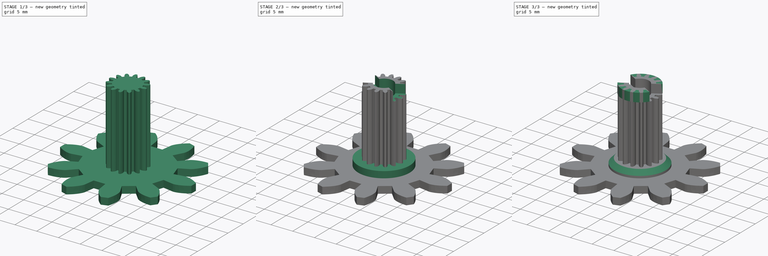
[diagram: build sequence overview — one tinted view per stage of 3, left to right]
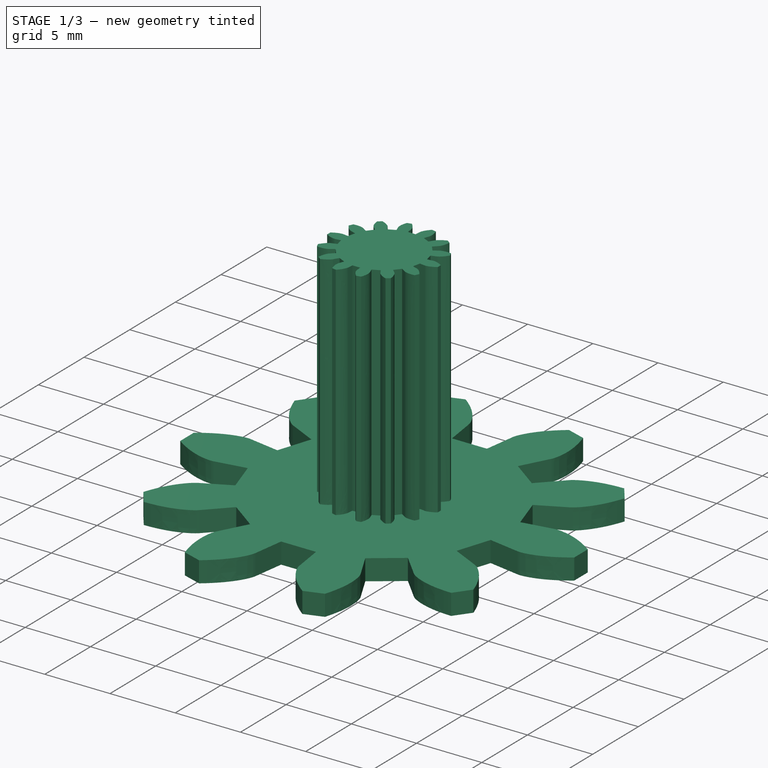
[diagram: stage 1 of 3 — iso view after this stage's code; geometry added in this stage tinted green]
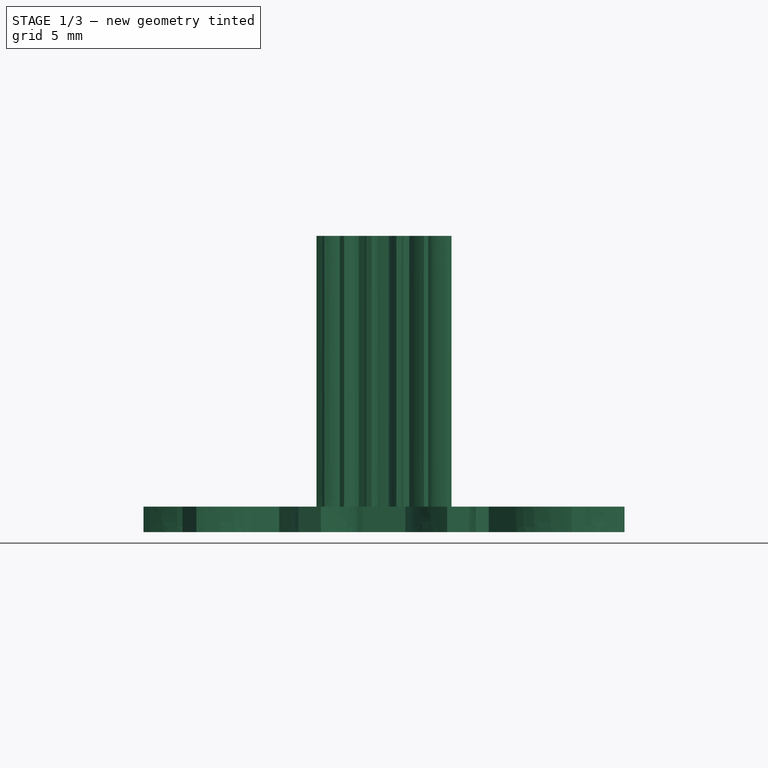
[diagram: stage 1 of 3 — front view after this stage's code; geometry added in this stage tinted green]
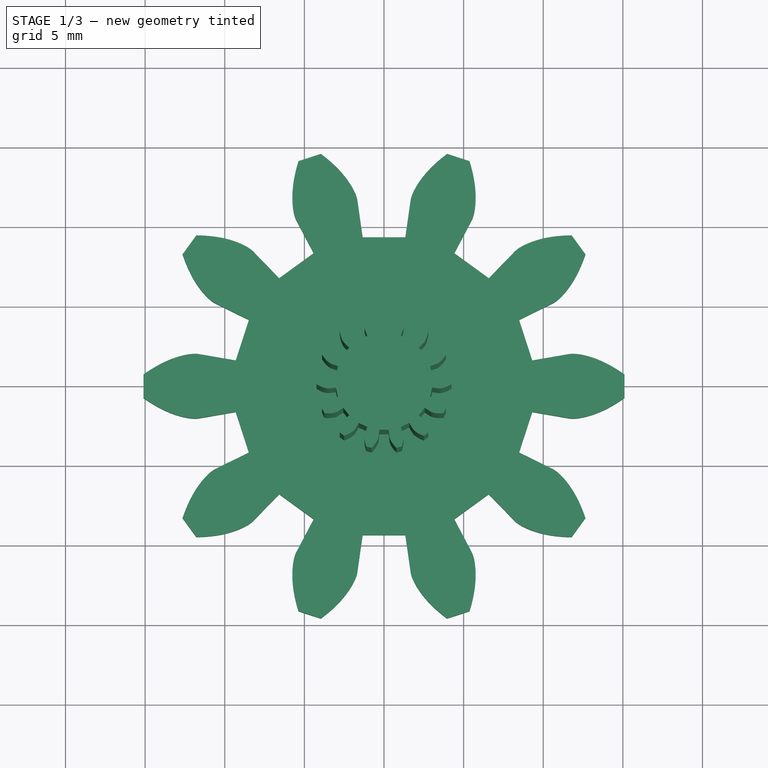
[diagram: stage 1 of 3 — top view after this stage's code; geometry added in this stage tinted green]
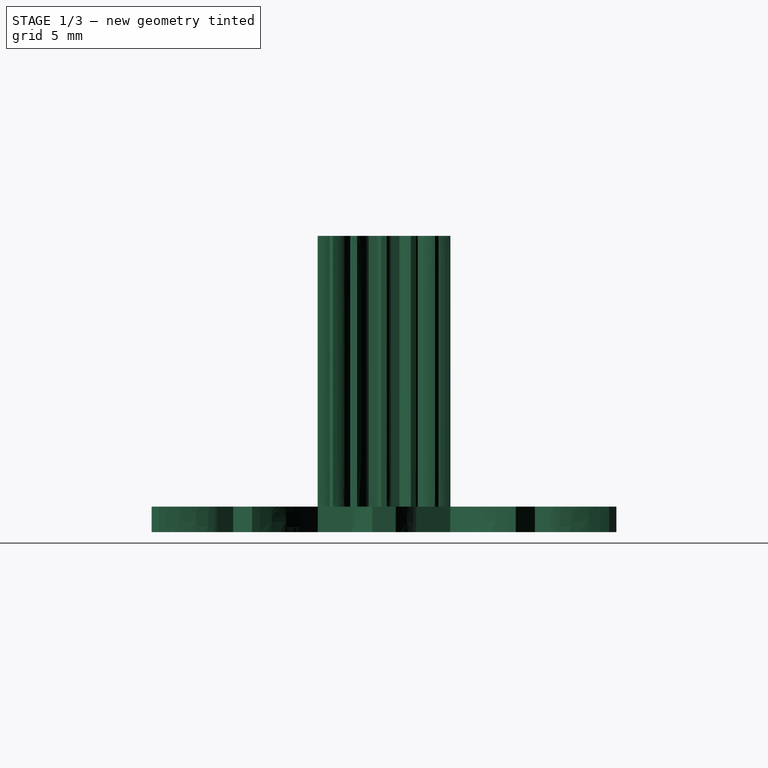
[diagram: stage 1 of 3 — right view after this stage's code; geometry added in this stage tinted green]
FCSTD DOCUMENT  (FreeCAD 0.20R29410 (Git))
Label: gear2
License: All rights reserved
LicenseURL: http://en.wikipedia.org/wiki/All_rights_reserved
objects: Sketcher::SketchObject×4, PartDesign::FeaturePython×2, PartDesign::Pad×2, PartDesign::Pocket×2, Spreadsheet::Sheet×1, PartDesign::Chamfer×1, PartDesign::Body×1, App::Part×1
note: 17 computed .brp shape members not serialized (recipe doc carries the construction recipe); baked Part::Feature solids carry a one-line shape summary decoded from their .brp

FEATURE [PartDesign::FeaturePython] InvoluteGear  # WARN: FeaturePython — macro-defined, semantics opaque (R4)
  AttacherType = Attacher::AttachEngine3D
  angular_backlash = 0
  backlash = 0
  beta = 0
  clearance = 0.25
  da = 30.24
  df = 18.9
  double_helix = false
  dw = 25.2
  head = 0
  head_fillet = 0
  height = 1.6
  module = 2.52
  numpoints = 6
  pressure_angle = 20
  properties_from_tool = false
  reversed_backlash = false
  root_fillet = 0
  shift = 0
  simple = false
  teeth = 10
  transverse_pitch = 7.91681
  undercut = false
  version = 0.0.4
  expr: angular_backlash = backlash / dw * 360° / pi
  expr: dw = teeth * module
FEATURE [PartDesign::FeaturePython] InvoluteGear001  # WARN: FeaturePython — macro-defined, semantics opaque (R4)
  AttacherType = Attacher::AttachEngine3D
  BaseFeature = -> InvoluteGear
  angular_backlash = 0
  backlash = 0
  beta = 0
  clearance = 0.25
  da = 8.48
  df = 6.095
  double_helix = false
  dw = 7.42
  head = 0
  head_fillet = 0
  height = 18.6
  module = 0.53
  numpoints = 6
  pressure_angle = 20
  properties_from_tool = false
  reversed_backlash = false
  root_fillet = 0
  shift = 0
  simple = false
  teeth = 14
  transverse_pitch = 1.66504
  undercut = false
  version = 0.0.4
  expr: angular_backlash = backlash / dw * 360° / pi
  expr: dw = teeth * module
  expr: height = <<P>>.g1_height + <<P>>.g2_height
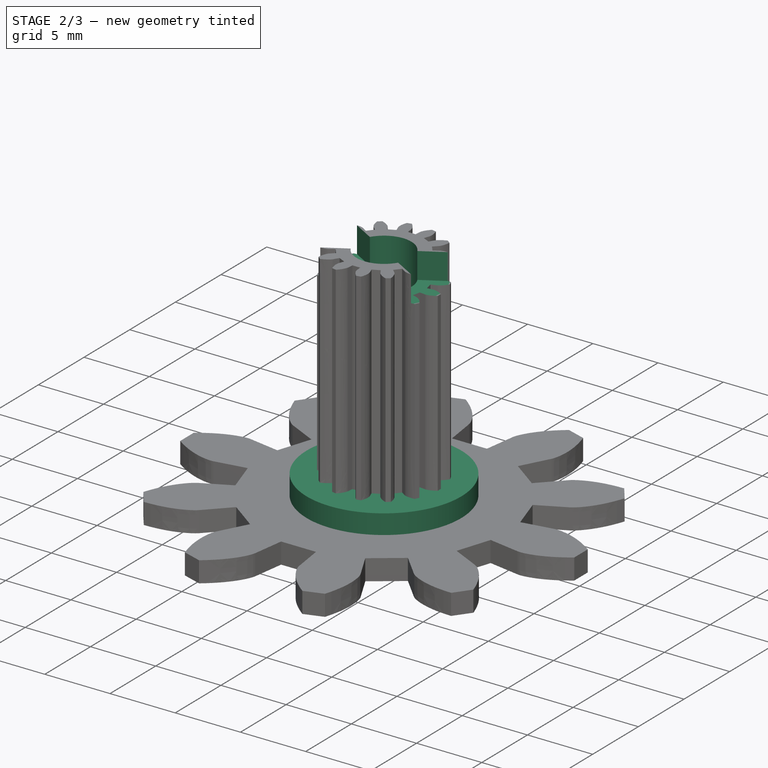
[diagram: stage 2 of 3 — iso view after this stage's code; geometry added in this stage tinted green]
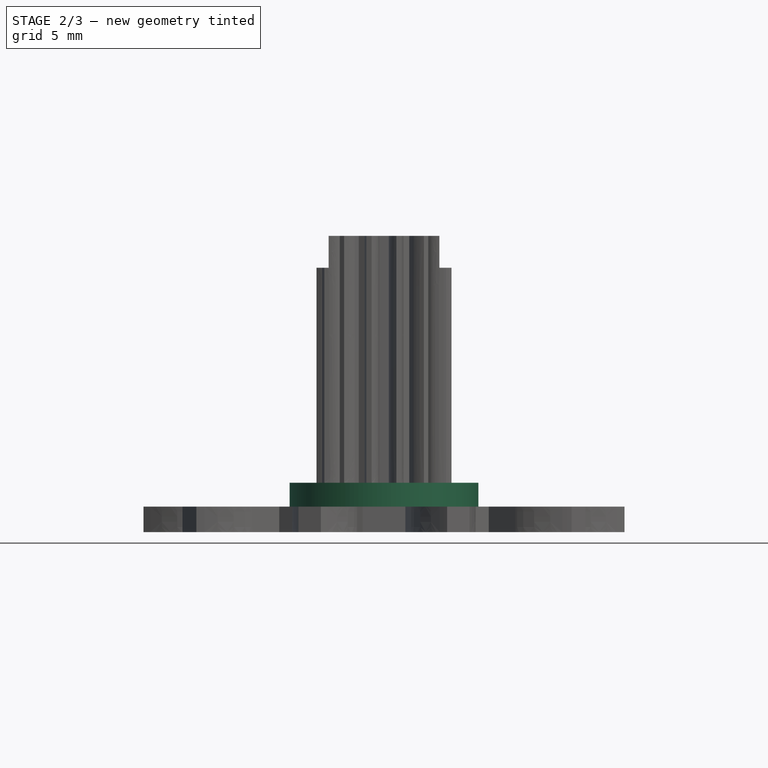
[diagram: stage 2 of 3 — front view after this stage's code; geometry added in this stage tinted green]
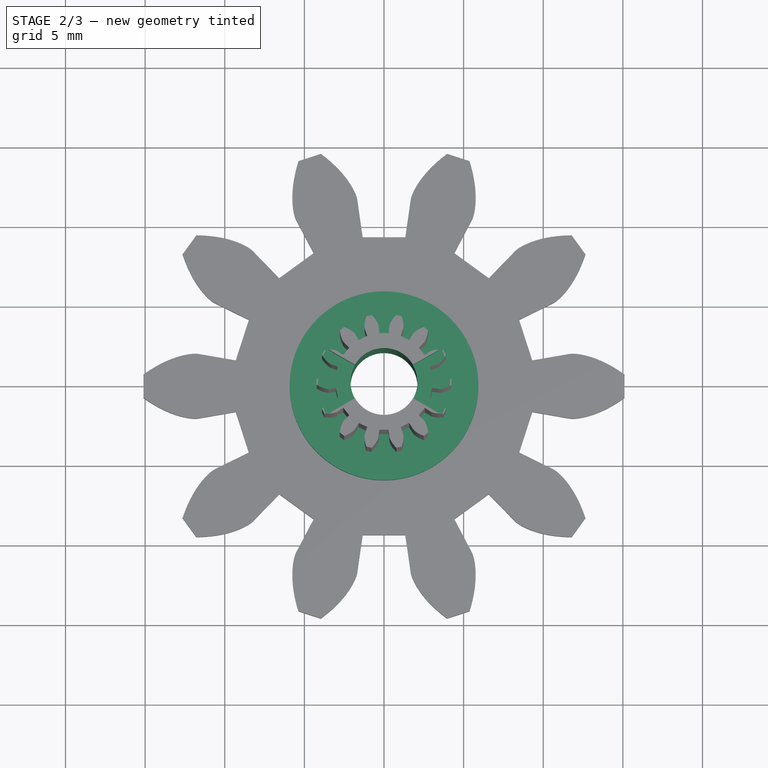
[diagram: stage 2 of 3 — top view after this stage's code; geometry added in this stage tinted green]
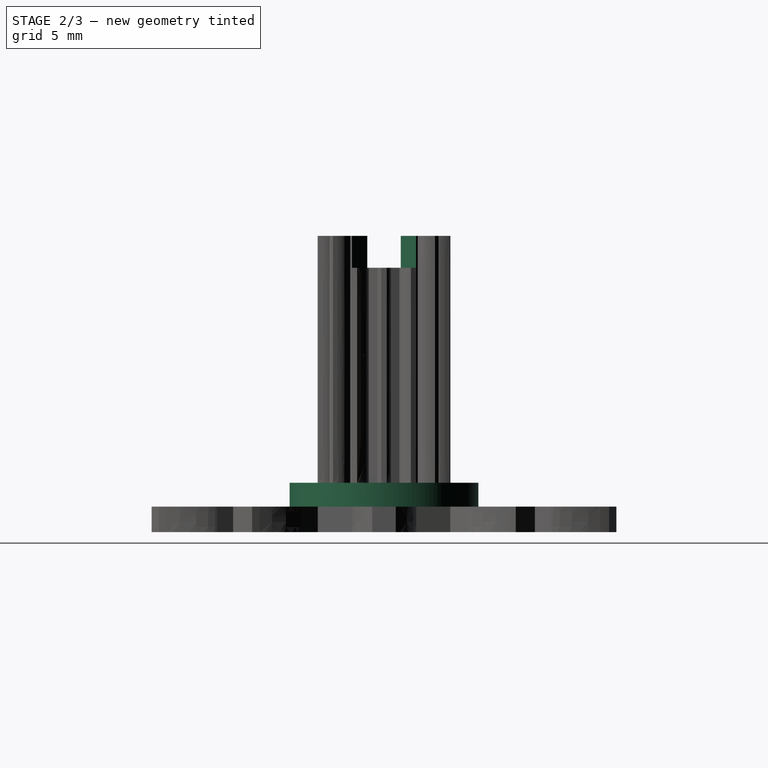
[diagram: stage 2 of 3 — right view after this stage's code; geometry added in this stage tinted green]
FEATURE [Spreadsheet::Sheet] Spreadsheet  label="P"
  cells = A1=g1_height; B1(g1_height)=1.6; A2=ideal_hole_ID; B2(ideal_hole_ID)=4.2; C2=actual; D2=3.7; A3=hole_creep; B3(hole_creep)=0; A4=hole_ID; B4(hole_id)=4.6; A5=g2_height; B5(g2_height)=17
FEATURE [Sketcher::SketchObject] Sketch002
  FullyConstrained = true
  MapMode = 5
  Placement = pos=(0,0,1.6) rot=(0,0,1;0rad)
  sketch-geometry (1):
    g0: Circle CenterX=0 CenterY=0 CenterZ=0 NormalX=0 NormalY=0 NormalZ=1 AngleXU=0 Radius=5.93
  constraints (2):
    c: Coincident(g0,g-1)
    c: Diameter(g0) = 11.86
FEATURE [PartDesign::Pad] Pad
  BaseFeature = -> InvoluteGear001
  Direction = (0,0,1)
  Length = 1.5
  Length2 = 10
  Profile = -> Sketch002
  ReferenceAxis = -> Sketch002 [N_Axis]
  Type = 0
FEATURE [Sketcher::SketchObject] Sketch004  label="notch"
  FullyConstrained = false
  MapMode = 5
  Placement = pos=(0,0,18.6) rot=(1,0,0;3.14159rad)
  sketch-geometry (10):
    g0: GeomPoint X=0 Y=1.96 Z=0
    g1: GeomPoint X=0 Y=-1.96 Z=0
    g2: LineSegment StartX=-3.35733 StartY=-1.96 StartZ=0 EndX=3.43231 EndY=1.96 EndZ=0
    g3: LineSegment StartX=-3.4309 StartY=1.96 StartZ=0 EndX=3.35874 EndY=-1.96 EndZ=0
    g4: ArcOfCircle CenterX=0 CenterY=0 CenterZ=0 NormalX=0 NormalY=0 NormalZ=1 AngleXU=0 Radius=4.255 StartAngle=2.61799 EndAngle=3.66519
    g5: LineSegment StartX=-3.68494 StartY=2.1275 StartZ=0 EndX=0 EndY=0 EndZ=0
    g6: LineSegment StartX=-3.68494 StartY=-2.1275 StartZ=0 EndX=0 EndY=0 EndZ=0
    g7: ArcOfCircle CenterX=0 CenterY=0 CenterZ=0 NormalX=0 NormalY=0 NormalZ=1 AngleXU=0 Radius=4.255 StartAngle=5.75959 EndAngle=6.80678
    g8: LineSegment StartX=3.68494 StartY=2.1275 StartZ=0 EndX=0 EndY=0 EndZ=0
    g9: LineSegment StartX=3.68494 StartY=-2.1275 StartZ=0 EndX=0 EndY=0 EndZ=0
  constraints (25):
    c: PointOnObject(g0,g-2)
    c: DistanceY(g-1,g0) = 1.96
    c: Symmetric(g0,g1,g-1)
    c: DistanceY(g0,g3) = 0
    c: DistanceY(g2,g0) = 0
    c: DistanceY(g2,g1) = 0
    c: DistanceY(g3,g1) = 0
    c: Coincident(g4,g-1)
    c: Coincident(g5,g4)
    c: Coincident(g5,g4)
    c: Coincident(g6,g4)
    c: Coincident(g6,g4)
    c: Diameter(g4) = 8.51
    c: Parallel(g5,g3)
    c: Parallel(g6,g2)
    c: Angle(g-1,g2) = 0.523599
    c: Angle(g-1,g3) = 2.61799
    c: Coincident(g7,g4)
    c: Diameter(g7) = 8.51
    c: Coincident(g8,g7)
    c: Coincident(g8,g4)
    c: Coincident(g9,g7)
    c: Coincident(g9,g4)
    c: Parallel(g8,g2)
    c: Parallel(g9,g3)
FEATURE [Sketcher::SketchObject] Sketch005  label="notch-shoulders"
  FullyConstrained = false
  MapMode = 5
  Placement = pos=(0,0,18.6) rot=(0,0,1;0rad)
  sketch-geometry (14):
    g0: GeomPoint X=0 Y=1.96 Z=0
    g1: GeomPoint X=0 Y=-1.96 Z=0
    g2: LineSegment StartX=0 StartY=0 StartZ=0 EndX=5.62504 EndY=3.24762 EndZ=0
    g3: LineSegment StartX=0 StartY=0 StartZ=0 EndX=-5.78994 EndY=3.34283 EndZ=0
    g4: LineSegment StartX=0 StartY=0 StartZ=0 EndX=-5.17036 EndY=-2.98511 EndZ=0
    g5: LineSegment StartX=0 StartY=0 StartZ=0 EndX=5.85062 EndY=-3.37786 EndZ=0
    g6: ArcOfCircle CenterX=0 CenterY=0 CenterZ=0 NormalX=0 NormalY=0 NormalZ=1 AngleXU=0 Radius=4.255 StartAngle=0.523599 EndAngle=2.61799
    g7: ArcOfCircle CenterX=0 CenterY=0 CenterZ=0 NormalX=0 NormalY=0 NormalZ=1 AngleXU=0 Radius=4.255 StartAngle=3.66519 EndAngle=5.75959
    g8: LineSegment StartX=-3.68494 StartY=-2.1275 StartZ=0 EndX=-1.797 EndY=-1.0375 EndZ=0
    g9: LineSegment StartX=3.68494 StartY=-2.1275 StartZ=0 EndX=1.797 EndY=-1.0375 EndZ=0
    g10: LineSegment StartX=3.68494 StartY=2.1275 StartZ=0 EndX=1.797 EndY=1.0375 EndZ=0
    g11: LineSegment StartX=-3.68494 StartY=2.1275 StartZ=0 EndX=-1.797 EndY=1.0375 EndZ=0
    g12: ArcOfCircle CenterX=0 CenterY=0 CenterZ=0 NormalX=0 NormalY=0 NormalZ=1 AngleXU=0 Radius=2.075 StartAngle=3.66519 EndAngle=5.75959
    g13: ArcOfCircle CenterX=0 CenterY=0 CenterZ=0 NormalX=0 NormalY=0 NormalZ=1 AngleXU=0 Radius=2.075 StartAngle=0.523599 EndAngle=2.61799
  constraints (34):
    c: PointOnObject(g0,g-2)
    c: DistanceY(g-1,g0) = 1.96
    c: Symmetric(g0,g1,g-1)
    c: Coincident(g2,g-1)
    c: Angle(g-1,g2) = 0.523599
    c: Coincident(g3,g2)
    c: Angle(g-1,g3) = 2.61799
    c: Coincident(g4,g2)
    c: Coincident(g5,g2)
    c: Parallel(g5,g3)
    c: Parallel(g4,g2)
    c: Coincident(g6,g2)
    c: Coincident(g7,g2)
    c: Diameter(g6) = 8.51
    c: Diameter(g7) = 8.51
    c: Coincident(g8,g7)
    c: Coincident(g9,g7)
    c: Coincident(g10,g6)
    c: PointOnObject(g6,g3)
    c: Coincident(g11,g6)
    c: Coincident(g12,g6)
    c: Diameter(g12) = 4.15
    c: PointOnObject(g11,g12)
    c: PointOnObject(g9,g12)
    c: PointOnObject(g13,g3)
    c: Coincident(g12,g8)
    c: Equal(g12,g13)
    c: PointOnObject(g12,g5)
    c: Coincident(g13,g10)
    c: Coincident(g12,g13)
    c: Parallel(g11,g3)
    c: Tangent(g8,g4)
    c: Tangent(g9,g5)
    c: Tangent(g2,g10)
FEATURE [Sketcher::SketchObject] Sketch006  label="hole"
  FullyConstrained = true
  MapMode = 5
  Placement = pos=(0,0,18.6) rot=(0,0,1;0rad)
  expr: Constraints[1] = <<P>>.ideal_hole_ID
  sketch-geometry (1):
    g0: Circle CenterX=0 CenterY=0 CenterZ=0 NormalX=0 NormalY=0 NormalZ=1 AngleXU=0 Radius=2.1
  constraints (2):
    c: Coincident(g0,g-1)
    c: Diameter(g0) = 4.2
FEATURE [PartDesign::Pocket] Pocket
  BaseFeature = -> Pad
  Direction = (0,0,-1)
  Length = 30
  Length2 = 5
  Profile = -> Sketch006
  ReferenceAxis = -> Sketch006 [N_Axis]
  Type = 0
FEATURE [PartDesign::Pocket] Pocket001
  BaseFeature = -> Pocket
  Direction = (0,1e-16,1)
  Length = 2
  Length2 = 5
  Profile = -> Sketch004
  ReferenceAxis = -> Sketch004 [N_Axis]
  Reversed = true
  Type = 0
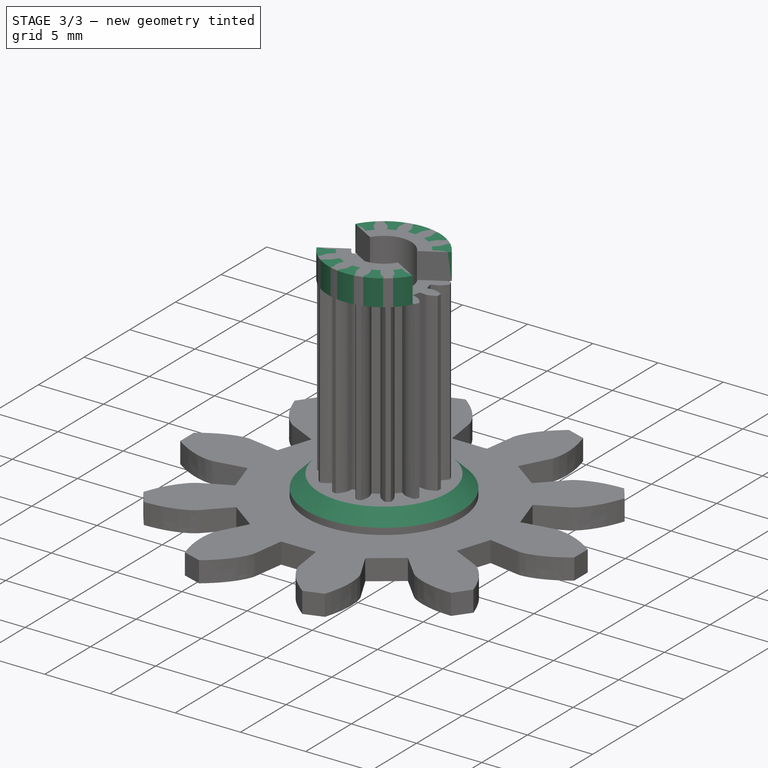
[diagram: stage 3 of 3 — iso view after this stage's code; geometry added in this stage tinted green]
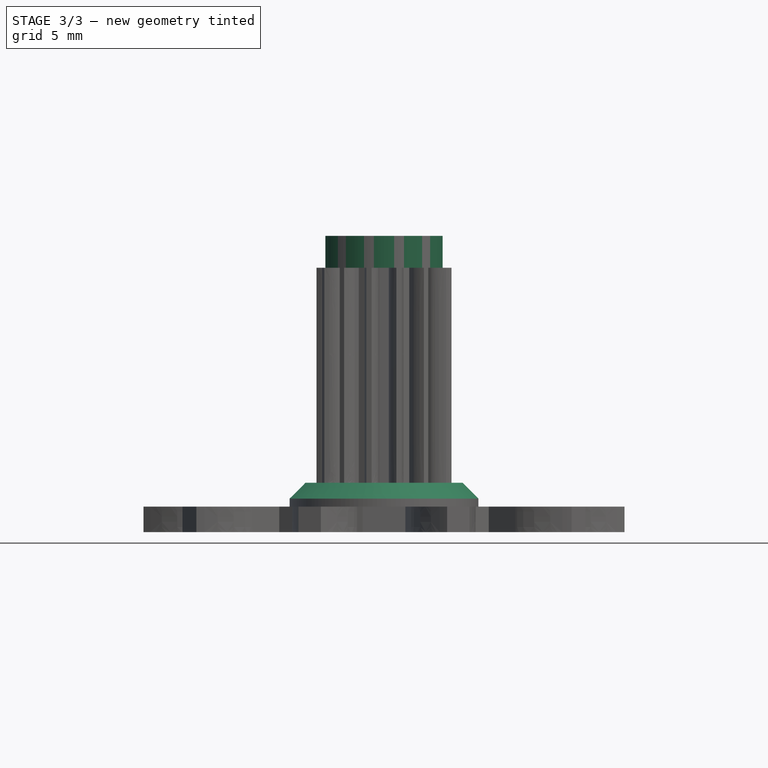
[diagram: stage 3 of 3 — front view after this stage's code; geometry added in this stage tinted green]
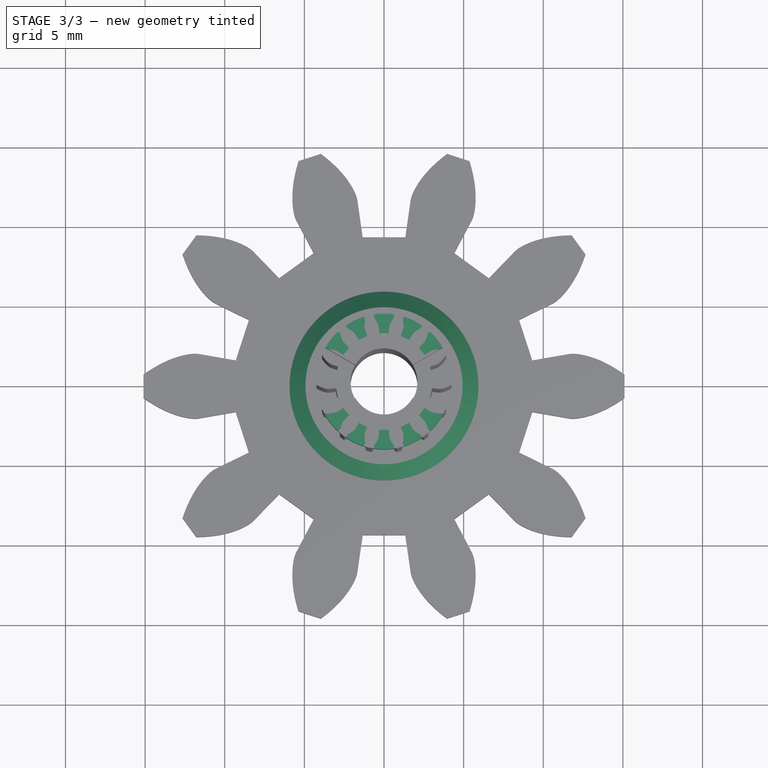
[diagram: stage 3 of 3 — top view after this stage's code; geometry added in this stage tinted green]
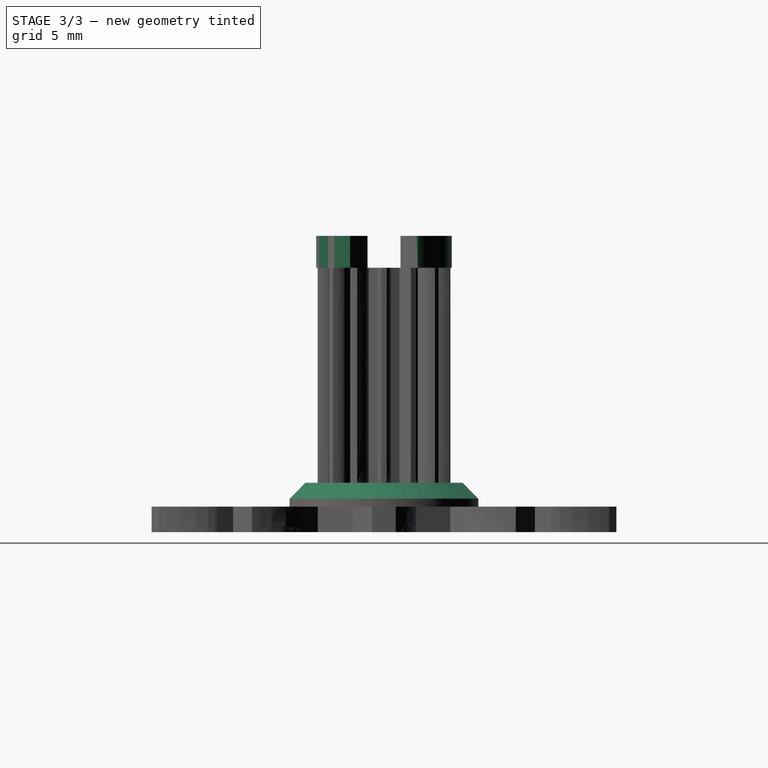
[diagram: stage 3 of 3 — right view after this stage's code; geometry added in this stage tinted green]
FEATURE [PartDesign::Pad] Pad001
  BaseFeature = -> Pocket001
  Direction = (0,0,1)
  Length = 2
  Length2 = 10
  Profile = -> Sketch005
  ReferenceAxis = -> Sketch005 [N_Axis]
  Reversed = true
  Type = 0
FEATURE [PartDesign::Chamfer] Chamfer
  Angle = 45
  Base = -> Pad001 [Edge3]
  BaseFeature = -> Pad001
  ChamferType = 0
  FlipDirection = false
  Size = 1
  Size2 = 1
  SupportTransform = false
  UseAllEdges = false
FEATURE [PartDesign::Body] Body
  Group = -> [InvoluteGear,InvoluteGear001,Sketch002,Pad,Sketch004,Sketch005,Sketch006,Pocket,Pocket001,Pad001,Chamfer]
  Origin = -> Origin001
  Tip = -> Chamfer
FEATURE [App::Part] Part
  Group = -> [Body]
  Origin = -> Origin
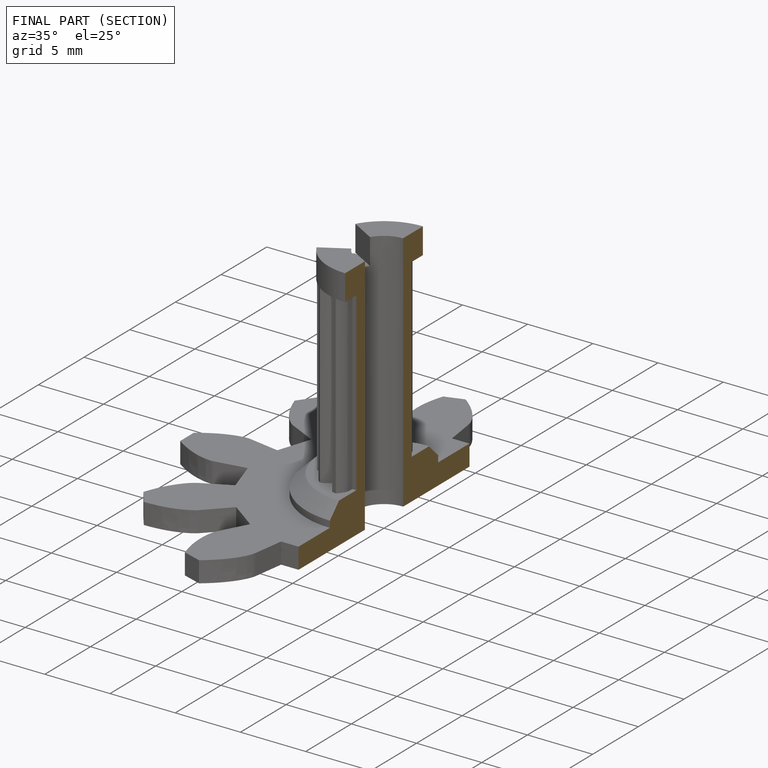
[diagram: finished part — half-section view (interior)]
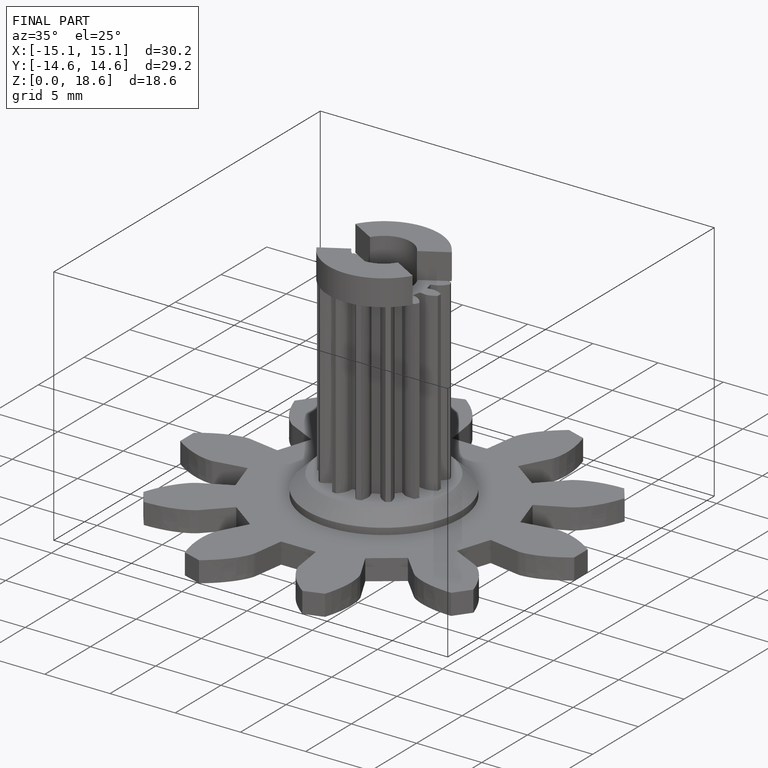
[diagram: finished part — iso view with bounding-box wireframe]
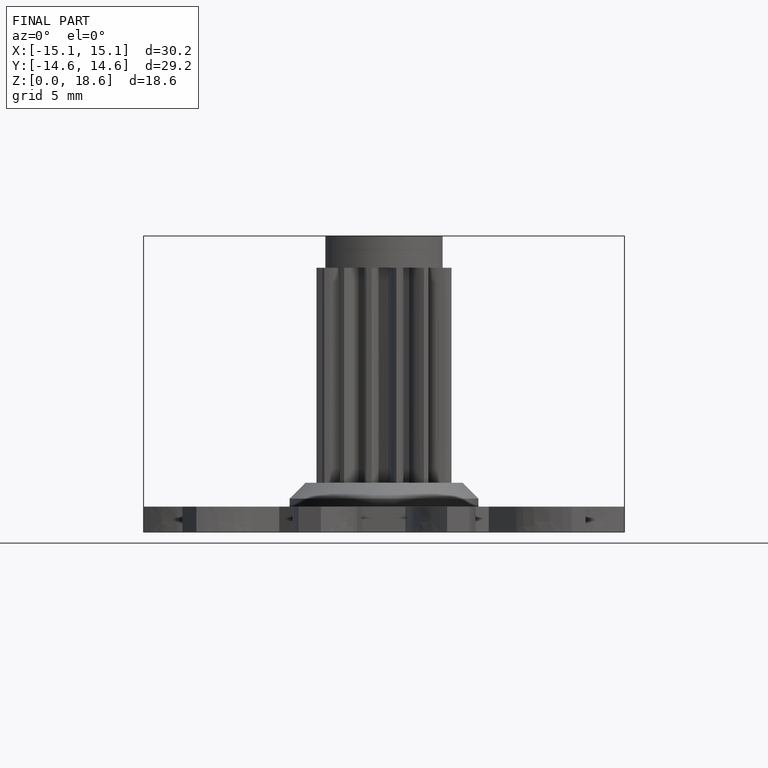
[diagram: finished part — front view with bounding-box wireframe]
